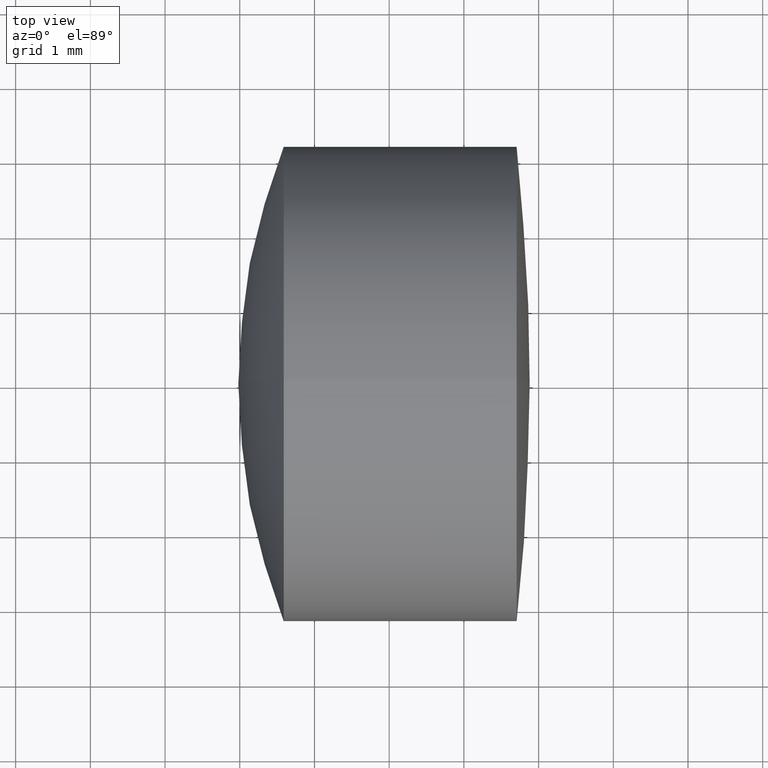
[diagram: clean part render]
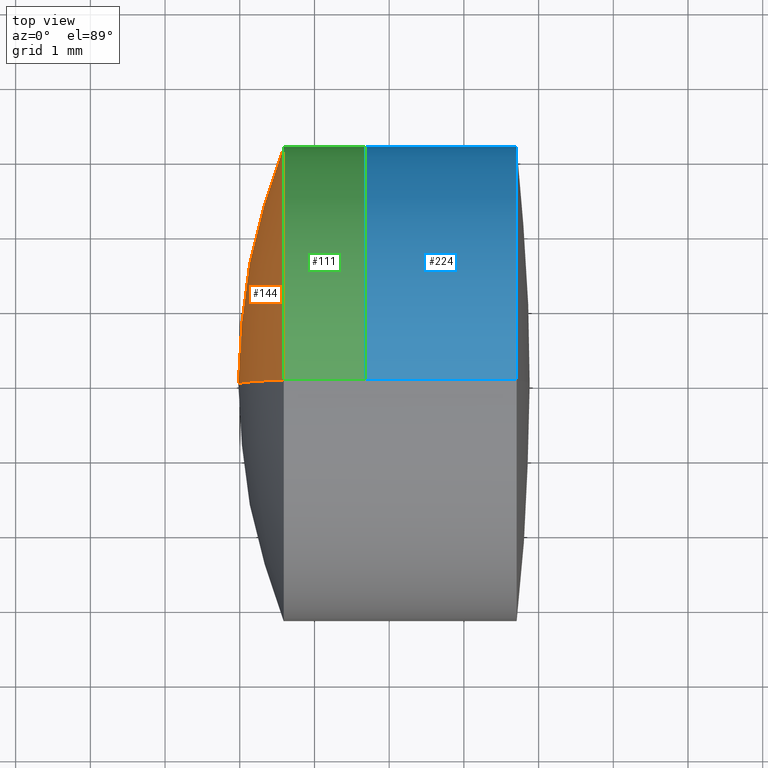
[diagram: same view with three faces highlighted in distinct colors, each labeled with its STEP entity id]
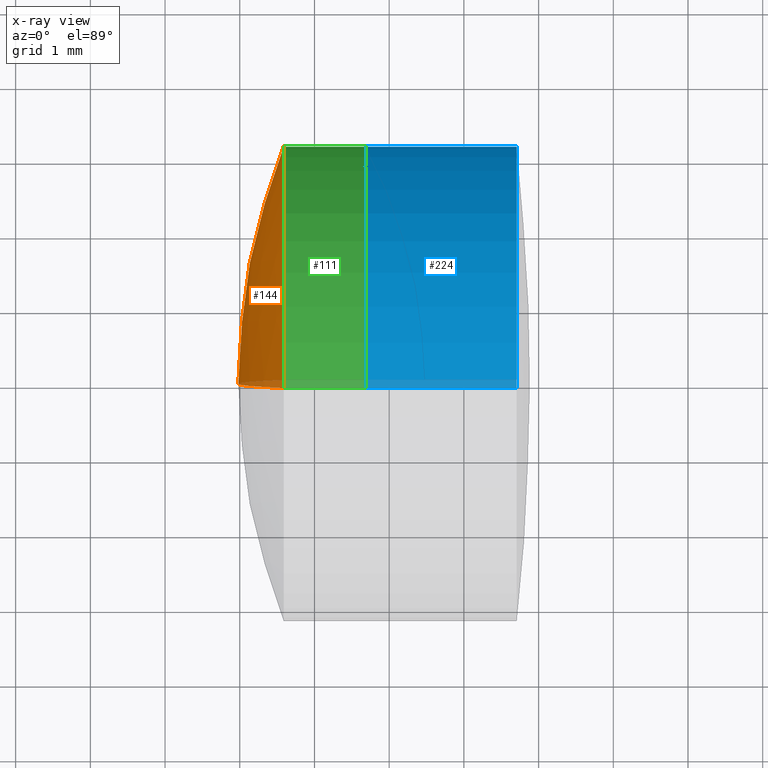
[diagram: x-ray of the same camera — body ghosted, the three highlighted faces saturated]
A machine part, top view with three faces highlighted in distinct colors.
The next image is the same camera in x-ray (body ghosted, the three faces saturated) — at least one of them is partly hidden behind the body in this view.
Their STEP definitions:

[orange] entity #144 — the highlighted spherical surface has radius 8.6 mm.
#29 = AXIS2_PLACEMENT_3D ( 'NONE', #344, #131, #314 ) ;
#45 = DIRECTION ( 'NONE',  ( 0.0000000000000000000, 1.224646799147353200E-016, -1.000000000000000000 ) ) ;
#46 = VERTEX_POINT ( 'NONE', #253 ) ;
#62 = CIRCLE ( 'NONE', #29, 3.174999999999999800 ) ;
#64 = VERTEX_POINT ( 'NONE', #124 ) ;
#72 = CARTESIAN_POINT ( 'NONE',  ( 268.5807127546710800, 0.0000000000000000000, 7.729108157225100800E-017 ) ) ;
#74 = EDGE_LOOP ( 'NONE', ( #318, #161, #343 ) ) ;
#92 = AXIS2_PLACEMENT_3D ( 'NONE', #158, #215, #45 ) ;
#96 = DIRECTION ( 'NONE',  ( 0.0000000000000000000, 0.0000000000000000000, 1.000000000000000000 ) ) ;
#106 = EDGE_CURVE ( 'NONE', #46, #64, #62, .T. ) ;
#122 = CIRCLE ( 'NONE', #236, 8.600000000000001400 ) ;
#123 = AXIS2_PLACEMENT_3D ( 'NONE', #216, #159, #264 ) ;
#124 = CARTESIAN_POINT ( 'NONE',  ( 260.5882553728641800, 0.0000000000000000000, -3.174999999999998500 ) ) ;
#131 = DIRECTION ( 'NONE',  ( -1.000000000000000000, -0.0000000000000000000, -0.0000000000000000000 ) ) ;
#144 = ADVANCED_FACE ( 'NONE', ( #308 ), #274, .T. ) ;
#154 = EDGE_CURVE ( 'NONE', #46, #217, #337, .T. ) ;
#158 = CARTESIAN_POINT ( 'NONE',  ( 268.5807127546710800, 0.0000000000000000000, 7.729108157225100800E-017 ) ) ;
#159 = DIRECTION ( 'NONE',  ( -0.0000000000000000000, -1.000000000000000000, -0.0000000000000000000 ) ) ;
#161 = ORIENTED_EDGE ( 'NONE', *, *, #106, .T. ) ;
#215 = DIRECTION ( 'NONE',  ( 0.0000000000000000000, -1.000000000000000000, -1.224646799147353200E-016 ) ) ;
#216 = CARTESIAN_POINT ( 'NONE',  ( 268.5807127546710800, 0.0000000000000000000, 7.729108157225100800E-017 ) ) ;
#217 = VERTEX_POINT ( 'NONE', #242 ) ;
#233 = DIRECTION ( 'NONE',  ( 0.0000000000000000000, 1.000000000000000000, -0.0000000000000000000 ) ) ;
#236 = AXIS2_PLACEMENT_3D ( 'NONE', #72, #233, #96 ) ;
#242 = CARTESIAN_POINT ( 'NONE',  ( 259.9807127546711200, 0.0000000000000000000, -4.493070420611109600E-016 ) ) ;
#253 = CARTESIAN_POINT ( 'NONE',  ( 260.5882553728641800, -3.888253587292844600E-016, 3.174999999999998500 ) ) ;
#264 = DIRECTION ( 'NONE',  ( 0.0000000000000000000, 0.0000000000000000000, -1.000000000000000000 ) ) ;
#274 = SPHERICAL_SURFACE ( 'NONE', #123, 8.600000000000001400 ) ;
#304 = EDGE_CURVE ( 'NONE', #64, #217, #122, .T. ) ;
#308 = FACE_OUTER_BOUND ( 'NONE', #74, .T. ) ;
#314 = DIRECTION ( 'NONE',  ( 0.0000000000000000000, 0.0000000000000000000, 1.000000000000000000 ) ) ;
#318 = ORIENTED_EDGE ( 'NONE', *, *, #154, .F. ) ;
#337 = CIRCLE ( 'NONE', #92, 8.600000000000001400 ) ;
#343 = ORIENTED_EDGE ( 'NONE', *, *, #304, .T. ) ;
#344 = CARTESIAN_POINT ( 'NONE',  ( 260.5882553728641800, 0.0000000000000000000, 0.0000000000000000000 ) ) ;

[blue] entity #224 — the highlighted cylindrical surface (partial cylindrical patch) has radius 3.175 mm, axis along (-1, -0, -0).
#26 = DIRECTION ( 'NONE',  ( -1.000000000000000000, -0.0000000000000000000, -0.0000000000000000000 ) ) ;
#30 = LINE ( 'NONE', #165, #113 ) ;
#39 = EDGE_CURVE ( 'NONE', #120, #286, #77, .T. ) ;
#51 = CARTESIAN_POINT ( 'NONE',  ( -0.5519199926577972300, 0.0000000000000000000, 0.0000000000000000000 ) ) ;
#52 = ORIENTED_EDGE ( 'NONE', *, *, #207, .T. ) ;
#56 = ORIENTED_EDGE ( 'NONE', *, *, #183, .T. ) ;
#57 = AXIS2_PLACEMENT_3D ( 'NONE', #110, #86, #319 ) ;
#67 = CARTESIAN_POINT ( 'NONE',  ( 261.6806597883319800, 0.0000000000000000000, 0.0000000000000000000 ) ) ;
#76 = CARTESIAN_POINT ( 'NONE',  ( -0.5519199926577972300, 0.0000000000000000000, 3.175000000000000700 ) ) ;
#77 = CIRCLE ( 'NONE', #201, 3.175000000000000700 ) ;
#78 = ORIENTED_EDGE ( 'NONE', *, *, #260, .F. ) ;
#86 = DIRECTION ( 'NONE',  ( -1.000000000000000000, -0.0000000000000000000, -0.0000000000000000000 ) ) ;
#110 = CARTESIAN_POINT ( 'NONE',  ( 263.7063849064184100, 0.0000000000000000000, 0.0000000000000000000 ) ) ;
#113 = VECTOR ( 'NONE', #26, 1000.000000000000000 ) ;
#120 = VERTEX_POINT ( 'NONE', #239 ) ;
#129 = ORIENTED_EDGE ( 'NONE', *, *, #39, .F. ) ;
#135 = VECTOR ( 'NONE', #178, 1000.000000000000000 ) ;
#165 = CARTESIAN_POINT ( 'NONE',  ( -0.5519199926577972300, 3.888253587292847100E-016, -3.175000000000000700 ) ) ;
#169 = FACE_OUTER_BOUND ( 'NONE', #272, .T. ) ;
#178 = DIRECTION ( 'NONE',  ( -1.000000000000000000, -0.0000000000000000000, -0.0000000000000000000 ) ) ;
#182 = DIRECTION ( 'NONE',  ( 0.0000000000000000000, 0.0000000000000000000, 1.000000000000000000 ) ) ;
#183 = EDGE_CURVE ( 'NONE', #323, #342, #291, .T. ) ;
#199 = DIRECTION ( 'NONE',  ( 0.0000000000000000000, 0.0000000000000000000, 1.000000000000000000 ) ) ;
#201 = AXIS2_PLACEMENT_3D ( 'NONE', #67, #230, #199 ) ;
#205 = LINE ( 'NONE', #76, #135 ) ;
#207 = EDGE_CURVE ( 'NONE', #342, #286, #30, .T. ) ;
#220 = DIRECTION ( 'NONE',  ( -1.000000000000000000, -0.0000000000000000000, -0.0000000000000000000 ) ) ;
#224 = ADVANCED_FACE ( 'NONE', ( #169 ), #309, .T. ) ;
#230 = DIRECTION ( 'NONE',  ( -1.000000000000000000, -0.0000000000000000000, -0.0000000000000000000 ) ) ;
#239 = CARTESIAN_POINT ( 'NONE',  ( 261.6806597883319800, 0.0000000000000000000, 3.175000000000000700 ) ) ;
#256 = CARTESIAN_POINT ( 'NONE',  ( 263.7063849064184100, 0.0000000000000000000, 3.175000000000000700 ) ) ;
#260 = EDGE_CURVE ( 'NONE', #323, #120, #205, .T. ) ;
#272 = EDGE_LOOP ( 'NONE', ( #56, #52, #129, #78 ) ) ;
#286 = VERTEX_POINT ( 'NONE', #288 ) ;
#288 = CARTESIAN_POINT ( 'NONE',  ( 261.6806597883319800, 3.888253587292847600E-016, -3.175000000000000700 ) ) ;
#291 = CIRCLE ( 'NONE', #57, 3.175000000000000700 ) ;
#293 = AXIS2_PLACEMENT_3D ( 'NONE', #51, #220, #182 ) ;
#309 = CYLINDRICAL_SURFACE ( 'NONE', #293, 3.175000000000000700 ) ;
#319 = DIRECTION ( 'NONE',  ( 0.0000000000000000000, 0.0000000000000000000, 1.000000000000000000 ) ) ;
#323 = VERTEX_POINT ( 'NONE', #256 ) ;
#333 = CARTESIAN_POINT ( 'NONE',  ( 263.7063849064184100, 3.888253587292847100E-016, -3.175000000000000700 ) ) ;
#342 = VERTEX_POINT ( 'NONE', #333 ) ;

[green] entity #111 — the highlighted cylindrical surface (partial cylindrical patch) has radius 3.175 mm, axis along (-1, -0, -0).
#21 = CARTESIAN_POINT ( 'NONE',  ( 261.6806597883319800, 3.888253587292846100E-016, -3.174999999999999800 ) ) ;
#22 = CARTESIAN_POINT ( 'NONE',  ( 124.5233095260452400, 0.0000000000000000000, 0.0000000000000000000 ) ) ;
#29 = AXIS2_PLACEMENT_3D ( 'NONE', #344, #131, #314 ) ;
#33 = ORIENTED_EDGE ( 'NONE', *, *, #250, .T. ) ;
#46 = VERTEX_POINT ( 'NONE', #253 ) ;
#62 = CIRCLE ( 'NONE', #29, 3.174999999999999800 ) ;
#64 = VERTEX_POINT ( 'NONE', #124 ) ;
#79 = DIRECTION ( 'NONE',  ( -1.000000000000000000, -0.0000000000000000000, -0.0000000000000000000 ) ) ;
#80 = DIRECTION ( 'NONE',  ( -1.000000000000000000, -0.0000000000000000000, -0.0000000000000000000 ) ) ;
#95 = FACE_OUTER_BOUND ( 'NONE', #226, .T. ) ;
#100 = DIRECTION ( 'NONE',  ( 0.0000000000000000000, 0.0000000000000000000, 1.000000000000000000 ) ) ;
#101 = EDGE_CURVE ( 'NONE', #195, #46, #127, .T. ) ;
#103 = CYLINDRICAL_SURFACE ( 'NONE', #278, 3.174999999999999800 ) ;
#106 = EDGE_CURVE ( 'NONE', #46, #64, #62, .T. ) ;
#111 = ADVANCED_FACE ( 'NONE', ( #95 ), #103, .T. ) ;
#124 = CARTESIAN_POINT ( 'NONE',  ( 260.5882553728641800, 0.0000000000000000000, -3.174999999999998500 ) ) ;
#127 = LINE ( 'NONE', #218, #166 ) ;
#128 = CARTESIAN_POINT ( 'NONE',  ( 261.6806597883319800, 0.0000000000000000000, 0.0000000000000000000 ) ) ;
#131 = DIRECTION ( 'NONE',  ( -1.000000000000000000, -0.0000000000000000000, -0.0000000000000000000 ) ) ;
#137 = VERTEX_POINT ( 'NONE', #21 ) ;
#141 = ORIENTED_EDGE ( 'NONE', *, *, #101, .F. ) ;
#142 = ORIENTED_EDGE ( 'NONE', *, *, #106, .F. ) ;
#143 = CIRCLE ( 'NONE', #146, 3.174999999999999800 ) ;
#146 = AXIS2_PLACEMENT_3D ( 'NONE', #128, #290, #100 ) ;
#153 = DIRECTION ( 'NONE',  ( -1.000000000000000000, -0.0000000000000000000, -0.0000000000000000000 ) ) ;
#166 = VECTOR ( 'NONE', #80, 1000.000000000000000 ) ;
#180 = DIRECTION ( 'NONE',  ( 0.0000000000000000000, 0.0000000000000000000, 1.000000000000000000 ) ) ;
#184 = VECTOR ( 'NONE', #153, 1000.000000000000000 ) ;
#195 = VERTEX_POINT ( 'NONE', #209 ) ;
#203 = CARTESIAN_POINT ( 'NONE',  ( 124.5233095260452400, 3.888253587292846100E-016, -3.174999999999999800 ) ) ;
#208 = ORIENTED_EDGE ( 'NONE', *, *, #322, .T. ) ;
#209 = CARTESIAN_POINT ( 'NONE',  ( 261.6806597883319800, 0.0000000000000000000, 3.174999999999999800 ) ) ;
#218 = CARTESIAN_POINT ( 'NONE',  ( 124.5233095260452400, 0.0000000000000000000, 3.174999999999999800 ) ) ;
#226 = EDGE_LOOP ( 'NONE', ( #33, #208, #142, #141 ) ) ;
#250 = EDGE_CURVE ( 'NONE', #195, #137, #143, .T. ) ;
#253 = CARTESIAN_POINT ( 'NONE',  ( 260.5882553728641800, -3.888253587292844600E-016, 3.174999999999998500 ) ) ;
#278 = AXIS2_PLACEMENT_3D ( 'NONE', #22, #79, #180 ) ;
#290 = DIRECTION ( 'NONE',  ( -1.000000000000000000, -0.0000000000000000000, -0.0000000000000000000 ) ) ;
#314 = DIRECTION ( 'NONE',  ( 0.0000000000000000000, 0.0000000000000000000, 1.000000000000000000 ) ) ;
#322 = EDGE_CURVE ( 'NONE', #137, #64, #324, .T. ) ;
#324 = LINE ( 'NONE', #203, #184 ) ;
#344 = CARTESIAN_POINT ( 'NONE',  ( 260.5882553728641800, 0.0000000000000000000, 0.0000000000000000000 ) ) ;